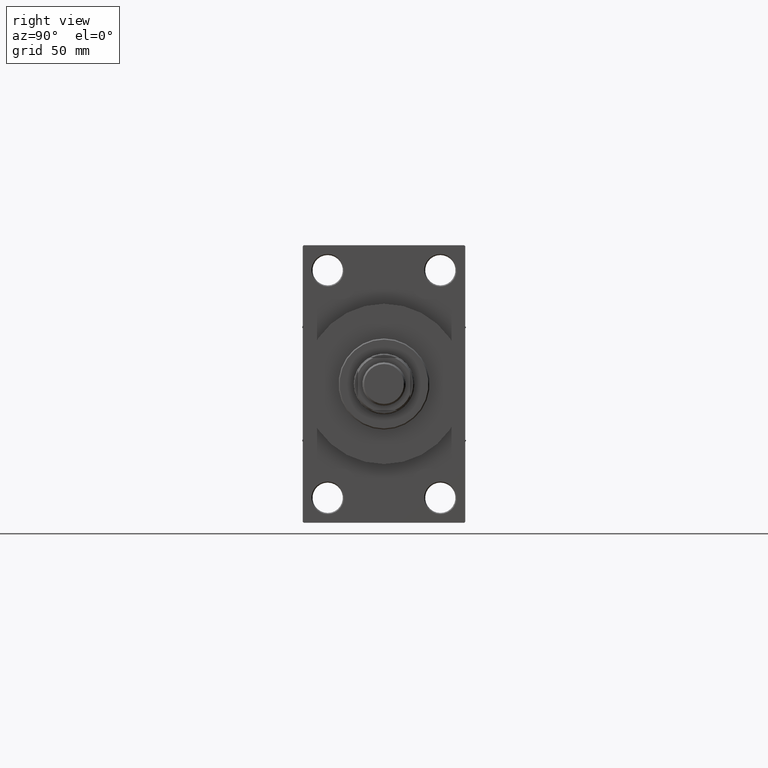
[diagram: clean part render]
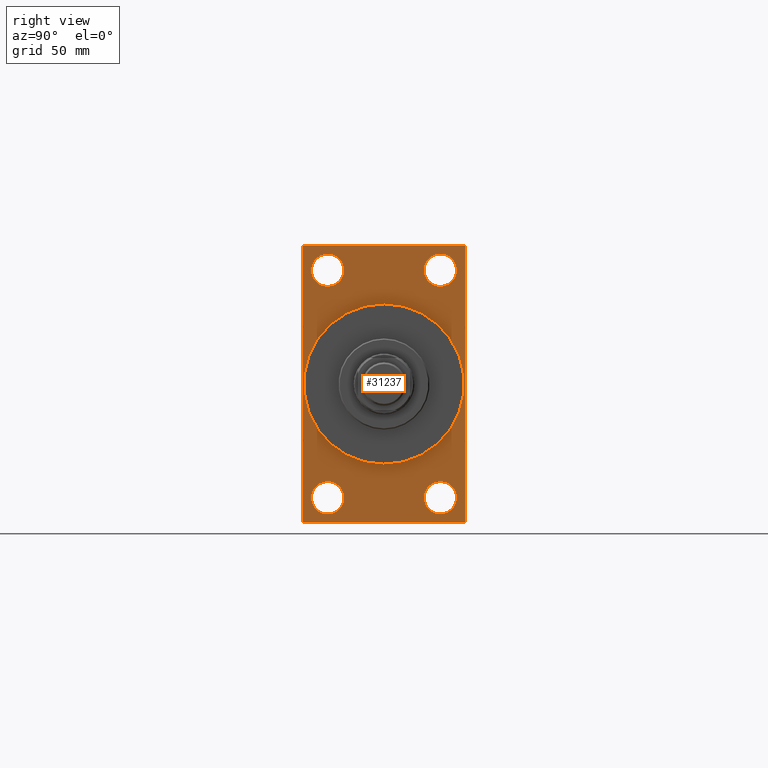
[diagram: same view with one face highlighted and labeled with its STEP entity id]
A machine part, right view. The second image highlights one B-rep face of the part: STEP entity #31237.
In plain terms, the highlighted planar face has unit normal (-1, 0, 0).
Its self-contained STEP definition (entity closure, byte-faithful):
#256 = ORIENTED_EDGE ( 'NONE', *, *, #36535, .T. ) ;
#471 = CARTESIAN_POINT ( 'NONE',  ( 218.0000000000000284, -25.99999999999999645, -52.49999999999999289 ) ) ;
#1481 = CARTESIAN_POINT ( 'NONE',  ( 218.0000000000000284, 26.00000000000000000, -52.49999999999999289 ) ) ;
#1488 = ORIENTED_EDGE ( 'NONE', *, *, #45208, .T. ) ;
#1940 = LINE ( 'NONE', #24817, #17558 ) ;
#2154 = FACE_OUTER_BOUND ( 'NONE', #16780, .T. ) ;
#2594 = VERTEX_POINT ( 'NONE', #45180 ) ;
#2659 = EDGE_CURVE ( 'NONE', #41295, #41350, #19469, .T. ) ;
#2825 = EDGE_CURVE ( 'NONE', #37734, #20423, #33293, .T. ) ;
#2866 = CARTESIAN_POINT ( 'NONE',  ( 218.0000000000000284, 0.000000000000000000, 0.000000000000000000 ) ) ;
#2878 = DIRECTION ( 'NONE',  ( 0.000000000000000000, -1.000000000000000000, -1.850371707708594563E-16 ) ) ;
#3392 = VECTOR ( 'NONE', #30174, 1000.000000000000000 ) ;
#3687 = VERTEX_POINT ( 'NONE', #47091 ) ;
#3838 = CIRCLE ( 'NONE', #5382, 7.499999999999978684 ) ;
#3879 = CIRCLE ( 'NONE', #19259, 37.00000000000000000 ) ;
#4008 = CARTESIAN_POINT ( 'NONE',  ( 218.0000000000000284, 0.000000000000000000, 0.000000000000000000 ) ) ;
#4144 = VECTOR ( 'NONE', #34955, 1000.000000000000000 ) ;
#4236 = DIRECTION ( 'NONE',  ( 0.000000000000000000, 0.000000000000000000, -1.000000000000000000 ) ) ;
#4312 = ORIENTED_EDGE ( 'NONE', *, *, #14507, .F. ) ;
#4677 = DIRECTION ( 'NONE',  ( 0.000000000000000000, 0.000000000000000000, 1.000000000000000000 ) ) ;
#4811 = LINE ( 'NONE', #33978, #28717 ) ;
#5248 = CARTESIAN_POINT ( 'NONE',  ( 218.0000000000000284, -36.99999999999992895, 63.99999999999997158 ) ) ;
#5350 = CIRCLE ( 'NONE', #10729, 7.499999999999978684 ) ;
#5382 = AXIS2_PLACEMENT_3D ( 'NONE', #11193, #7325, #25886 ) ;
#6006 = DIRECTION ( 'NONE',  ( -1.000000000000000000, 0.000000000000000000, -0.000000000000000000 ) ) ;
#6284 = EDGE_LOOP ( 'NONE', ( #29471, #36704 ) ) ;
#6340 = AXIS2_PLACEMENT_3D ( 'NONE', #33615, #22995, #4677 ) ;
#6705 = EDGE_CURVE ( 'NONE', #23368, #36883, #25184, .T. ) ;
#6750 = CARTESIAN_POINT ( 'NONE',  ( 218.0000000000000284, 37.49999999999999289, -63.49999999999995737 ) ) ;
#6900 = VECTOR ( 'NONE', #8471, 999.9999999999998863 ) ;
#7325 = DIRECTION ( 'NONE',  ( -1.000000000000000000, 0.000000000000000000, -0.000000000000000000 ) ) ;
#7368 = AXIS2_PLACEMENT_3D ( 'NONE', #28118, #17518, #46920 ) ;
#7684 = ORIENTED_EDGE ( 'NONE', *, *, #35530, .T. ) ;
#7846 = VERTEX_POINT ( 'NONE', #26092 ) ;
#8233 = CARTESIAN_POINT ( 'NONE',  ( 218.0000000000000284, 37.50000000000000000, 63.99999999999998579 ) ) ;
#8471 = DIRECTION ( 'NONE',  ( 0.000000000000000000, 0.7071067811865771047, -0.7071067811865180408 ) ) ;
#8595 = DIRECTION ( 'NONE',  ( 0.000000000000000000, 0.000000000000000000, 1.000000000000000000 ) ) ;
#9161 = EDGE_CURVE ( 'NONE', #24435, #23368, #31100, .T. ) ;
#9551 = VECTOR ( 'NONE', #33557, 1000.000000000000000 ) ;
#10109 = FACE_BOUND ( 'NONE', #23963, .T. ) ;
#10729 = AXIS2_PLACEMENT_3D ( 'NONE', #41632, #45235, #8595 ) ;
#11176 = AXIS2_PLACEMENT_3D ( 'NONE', #39650, #33126, #44694 ) ;
#11193 = CARTESIAN_POINT ( 'NONE',  ( 218.0000000000000284, -25.99999999999999645, -52.49999999999999289 ) ) ;
#11239 = CIRCLE ( 'NONE', #7368, 7.500000000000062172 ) ;
#12592 = DIRECTION ( 'NONE',  ( 0.000000000000000000, 0.000000000000000000, 1.000000000000000000 ) ) ;
#12697 = EDGE_CURVE ( 'NONE', #36883, #7846, #4811, .T. ) ;
#13376 = ORIENTED_EDGE ( 'NONE', *, *, #12697, .T. ) ;
#13981 = FACE_BOUND ( 'NONE', #28116, .T. ) ;
#14052 = CARTESIAN_POINT ( 'NONE',  ( 218.0000000000000284, -25.99999999999999645, -45.00000000000001421 ) ) ;
#14120 = CARTESIAN_POINT ( 'NONE',  ( 218.0000000000000284, -37.49999999999999289, 63.49999999999991473 ) ) ;
#14488 = EDGE_CURVE ( 'NONE', #25689, #24435, #45122, .T. ) ;
#14507 = EDGE_CURVE ( 'NONE', #25689, #2594, #37415, .T. ) ;
#14943 = VERTEX_POINT ( 'NONE', #16144 ) ;
#16123 = AXIS2_PLACEMENT_3D ( 'NONE', #2866, #6006, #24806 ) ;
#16144 = CARTESIAN_POINT ( 'NONE',  ( 218.0000000000000284, -36.99999999999996447, -64.00000000000001421 ) ) ;
#16700 = VERTEX_POINT ( 'NONE', #31937 ) ;
#16704 = EDGE_CURVE ( 'NONE', #46311, #47155, #17327, .T. ) ;
#16780 = EDGE_LOOP ( 'NONE', ( #13376, #7684, #25743, #256, #4312, #45736, #40115, #39097 ) ) ;
#17185 = CARTESIAN_POINT ( 'NONE',  ( 218.0000000000000284, 26.00000000000000000, -45.00000000000001421 ) ) ;
#17210 = CARTESIAN_POINT ( 'NONE',  ( 218.0000000000000284, 0.000000000000000000, 0.000000000000000000 ) ) ;
#17280 = ORIENTED_EDGE ( 'NONE', *, *, #19215, .F. ) ;
#17327 = CIRCLE ( 'NONE', #11176, 7.500000000000062172 ) ;
#17345 = FACE_BOUND ( 'NONE', #25345, .T. ) ;
#17518 = DIRECTION ( 'NONE',  ( -1.000000000000000000, 0.000000000000000000, -0.000000000000000000 ) ) ;
#17558 = VECTOR ( 'NONE', #2878, 1000.000000000000000 ) ;
#17835 = CARTESIAN_POINT ( 'NONE',  ( 218.0000000000000284, 0.000000000000000000, 37.00000000000000000 ) ) ;
#19023 = EDGE_CURVE ( 'NONE', #47155, #46311, #11239, .T. ) ;
#19127 = ORIENTED_EDGE ( 'NONE', *, *, #2659, .T. ) ;
#19215 = EDGE_CURVE ( 'NONE', #3687, #24270, #26628, .T. ) ;
#19259 = AXIS2_PLACEMENT_3D ( 'NONE', #17210, #43238, #24905 ) ;
#19349 = EDGE_CURVE ( 'NONE', #39616, #39428, #38977, .T. ) ;
#19469 = CIRCLE ( 'NONE', #6340, 7.499999999999978684 ) ;
#20423 = VERTEX_POINT ( 'NONE', #14052 ) ;
#20504 = AXIS2_PLACEMENT_3D ( 'NONE', #4008, #26396, #4236 ) ;
#21479 = AXIS2_PLACEMENT_3D ( 'NONE', #1481, #45606, #12592 ) ;
#22517 = AXIS2_PLACEMENT_3D ( 'NONE', #471, #41456, #34458 ) ;
#22995 = DIRECTION ( 'NONE',  ( -1.000000000000000000, 0.000000000000000000, -0.000000000000000000 ) ) ;
#23368 = VERTEX_POINT ( 'NONE', #5248 ) ;
#23963 = EDGE_LOOP ( 'NONE', ( #19127, #1488 ) ) ;
#24270 = VERTEX_POINT ( 'NONE', #17835 ) ;
#24435 = VERTEX_POINT ( 'NONE', #26470 ) ;
#24443 = ORIENTED_EDGE ( 'NONE', *, *, #46199, .T. ) ;
#24806 = DIRECTION ( 'NONE',  ( -0.000000000000000000, 0.000000000000000000, 1.000000000000000000 ) ) ;
#24817 = CARTESIAN_POINT ( 'NONE',  ( 218.0000000000000284, 37.49999999999999289, -64.00000000000000000 ) ) ;
#24842 = LINE ( 'NONE', #6750, #32346 ) ;
#24905 = DIRECTION ( 'NONE',  ( 0.000000000000000000, 0.000000000000000000, -1.000000000000000000 ) ) ;
#24947 = DIRECTION ( 'NONE',  ( -0.000000000000000000, -0.7071067811865524577, -0.7071067811865426878 ) ) ;
#25184 = LINE ( 'NONE', #14120, #27908 ) ;
#25345 = EDGE_LOOP ( 'NONE', ( #25971, #43505 ) ) ;
#25689 = VERTEX_POINT ( 'NONE', #36525 ) ;
#25743 = ORIENTED_EDGE ( 'NONE', *, *, #27478, .F. ) ;
#25886 = DIRECTION ( 'NONE',  ( 0.000000000000000000, 0.000000000000000000, 1.000000000000000000 ) ) ;
#25971 = ORIENTED_EDGE ( 'NONE', *, *, #19023, .T. ) ;
#26085 = CIRCLE ( 'NONE', #21479, 7.499999999999978684 ) ;
#26092 = CARTESIAN_POINT ( 'NONE',  ( 218.0000000000000284, -37.49999999999999289, -63.50000000000002842 ) ) ;
#26396 = DIRECTION ( 'NONE',  ( 1.000000000000000000, 0.000000000000000000, 0.000000000000000000 ) ) ;
#26470 = CARTESIAN_POINT ( 'NONE',  ( 218.0000000000000284, 36.99999999999997158, 63.99999999999998579 ) ) ;
#26628 = CIRCLE ( 'NONE', #20504, 37.00000000000000000 ) ;
#27292 = CARTESIAN_POINT ( 'NONE',  ( 218.0000000000000284, 26.00000000000000000, 59.99999999999997158 ) ) ;
#27355 = CARTESIAN_POINT ( 'NONE',  ( 218.0000000000000284, 26.00000000000000000, -52.49999999999999289 ) ) ;
#27478 = EDGE_CURVE ( 'NONE', #16700, #14943, #1940, .T. ) ;
#27908 = VECTOR ( 'NONE', #24947, 1000.000000000000000 ) ;
#28116 = EDGE_LOOP ( 'NONE', ( #40223, #17280 ) ) ;
#28118 = CARTESIAN_POINT ( 'NONE',  ( 218.0000000000000284, -25.99999999999999645, 52.50000000000000000 ) ) ;
#28717 = VECTOR ( 'NONE', #41219, 1000.000000000000000 ) ;
#29176 = DIRECTION ( 'NONE',  ( -0.000000000000000000, 0.7071067811865181518, 0.7071067811865769936 ) ) ;
#29471 = ORIENTED_EDGE ( 'NONE', *, *, #19349, .T. ) ;
#29654 = EDGE_CURVE ( 'NONE', #39428, #39616, #26085, .T. ) ;
#29934 = CARTESIAN_POINT ( 'NONE',  ( 218.0000000000000284, 36.99999999999997158, 63.99999999999998579 ) ) ;
#30170 = CARTESIAN_POINT ( 'NONE',  ( 218.0000000000000284, -36.99999999999996447, -64.00000000000001421 ) ) ;
#30174 = DIRECTION ( 'NONE',  ( 0.000000000000000000, -0.7071067811865672237, 0.7071067811865279218 ) ) ;
#31100 = LINE ( 'NONE', #31798, #4144 ) ;
#31237 = ADVANCED_FACE ( 'NONE', ( #17345, #39282, #43139, #10109, #13981, #2154 ), #39518, .F. ) ;
#31720 = EDGE_LOOP ( 'NONE', ( #34352, #24443 ) ) ;
#31798 = CARTESIAN_POINT ( 'NONE',  ( 218.0000000000000284, 37.50000000000000000, 63.99999999999998579 ) ) ;
#31937 = CARTESIAN_POINT ( 'NONE',  ( 218.0000000000000284, 36.99999999999999289, -64.00000000000000000 ) ) ;
#32235 = CARTESIAN_POINT ( 'NONE',  ( 218.0000000000000284, -25.99999999999999645, 60.00000000000005684 ) ) ;
#32346 = VECTOR ( 'NONE', #29176, 1000.000000000000000 ) ;
#33126 = DIRECTION ( 'NONE',  ( -1.000000000000000000, 0.000000000000000000, -0.000000000000000000 ) ) ;
#33293 = CIRCLE ( 'NONE', #22517, 7.499999999999978684 ) ;
#33557 = DIRECTION ( 'NONE',  ( 0.000000000000000000, -5.421010862427522170E-17, -1.000000000000000000 ) ) ;
#33575 = CARTESIAN_POINT ( 'NONE',  ( 218.0000000000000284, 26.00000000000000000, 45.00000000000001421 ) ) ;
#33615 = CARTESIAN_POINT ( 'NONE',  ( 218.0000000000000284, 26.00000000000000000, 52.49999999999999289 ) ) ;
#33978 = CARTESIAN_POINT ( 'NONE',  ( 218.0000000000000284, -37.49999999999999289, 63.99999999999997158 ) ) ;
#34352 = ORIENTED_EDGE ( 'NONE', *, *, #2825, .T. ) ;
#34458 = DIRECTION ( 'NONE',  ( 0.000000000000000000, 0.000000000000000000, 1.000000000000000000 ) ) ;
#34955 = DIRECTION ( 'NONE',  ( 0.000000000000000000, -1.000000000000000000, -1.850371707708594563E-16 ) ) ;
#35530 = EDGE_CURVE ( 'NONE', #7846, #14943, #37644, .T. ) ;
#36525 = CARTESIAN_POINT ( 'NONE',  ( 218.0000000000000284, 37.50000000000000000, 63.49999999999998579 ) ) ;
#36535 = EDGE_CURVE ( 'NONE', #16700, #2594, #24842, .T. ) ;
#36589 = CARTESIAN_POINT ( 'NONE',  ( 218.0000000000000284, -25.99999999999999645, 44.99999999999993605 ) ) ;
#36704 = ORIENTED_EDGE ( 'NONE', *, *, #29654, .T. ) ;
#36883 = VERTEX_POINT ( 'NONE', #43595 ) ;
#37415 = LINE ( 'NONE', #8233, #9551 ) ;
#37644 = LINE ( 'NONE', #30170, #6900 ) ;
#37734 = VERTEX_POINT ( 'NONE', #44090 ) ;
#37883 = CARTESIAN_POINT ( 'NONE',  ( 218.0000000000000284, 26.00000000000000000, -59.99999999999997158 ) ) ;
#37987 = DIRECTION ( 'NONE',  ( 0.000000000000000000, 0.000000000000000000, 1.000000000000000000 ) ) ;
#38977 = CIRCLE ( 'NONE', #45889, 7.499999999999978684 ) ;
#39097 = ORIENTED_EDGE ( 'NONE', *, *, #6705, .T. ) ;
#39282 = FACE_BOUND ( 'NONE', #31720, .T. ) ;
#39428 = VERTEX_POINT ( 'NONE', #17185 ) ;
#39518 = PLANE ( 'NONE',  #16123 ) ;
#39616 = VERTEX_POINT ( 'NONE', #37883 ) ;
#39650 = CARTESIAN_POINT ( 'NONE',  ( 218.0000000000000284, -25.99999999999999645, 52.50000000000000000 ) ) ;
#40115 = ORIENTED_EDGE ( 'NONE', *, *, #9161, .T. ) ;
#40223 = ORIENTED_EDGE ( 'NONE', *, *, #47644, .F. ) ;
#41219 = DIRECTION ( 'NONE',  ( 0.000000000000000000, 0.000000000000000000, -1.000000000000000000 ) ) ;
#41295 = VERTEX_POINT ( 'NONE', #33575 ) ;
#41350 = VERTEX_POINT ( 'NONE', #27292 ) ;
#41357 = DIRECTION ( 'NONE',  ( -1.000000000000000000, 0.000000000000000000, -0.000000000000000000 ) ) ;
#41456 = DIRECTION ( 'NONE',  ( -1.000000000000000000, 0.000000000000000000, -0.000000000000000000 ) ) ;
#41632 = CARTESIAN_POINT ( 'NONE',  ( 218.0000000000000284, 26.00000000000000000, 52.49999999999999289 ) ) ;
#43139 = FACE_BOUND ( 'NONE', #6284, .T. ) ;
#43238 = DIRECTION ( 'NONE',  ( 1.000000000000000000, 0.000000000000000000, 0.000000000000000000 ) ) ;
#43505 = ORIENTED_EDGE ( 'NONE', *, *, #16704, .T. ) ;
#43595 = CARTESIAN_POINT ( 'NONE',  ( 218.0000000000000284, -37.49999999999999289, 63.49999999999991473 ) ) ;
#44090 = CARTESIAN_POINT ( 'NONE',  ( 218.0000000000000284, -25.99999999999999645, -59.99999999999997158 ) ) ;
#44694 = DIRECTION ( 'NONE',  ( 0.000000000000000000, 0.000000000000000000, 1.000000000000000000 ) ) ;
#45122 = LINE ( 'NONE', #29934, #3392 ) ;
#45180 = CARTESIAN_POINT ( 'NONE',  ( 218.0000000000000284, 37.49999999999999289, -63.49999999999995737 ) ) ;
#45208 = EDGE_CURVE ( 'NONE', #41350, #41295, #5350, .T. ) ;
#45235 = DIRECTION ( 'NONE',  ( -1.000000000000000000, 0.000000000000000000, -0.000000000000000000 ) ) ;
#45606 = DIRECTION ( 'NONE',  ( -1.000000000000000000, 0.000000000000000000, -0.000000000000000000 ) ) ;
#45736 = ORIENTED_EDGE ( 'NONE', *, *, #14488, .T. ) ;
#45889 = AXIS2_PLACEMENT_3D ( 'NONE', #27355, #41357, #37987 ) ;
#46199 = EDGE_CURVE ( 'NONE', #20423, #37734, #3838, .T. ) ;
#46311 = VERTEX_POINT ( 'NONE', #32235 ) ;
#46920 = DIRECTION ( 'NONE',  ( 0.000000000000000000, 0.000000000000000000, 1.000000000000000000 ) ) ;
#47091 = CARTESIAN_POINT ( 'NONE',  ( 218.0000000000000284, 4.531193156845206793E-15, -37.00000000000000000 ) ) ;
#47155 = VERTEX_POINT ( 'NONE', #36589 ) ;
#47644 = EDGE_CURVE ( 'NONE', #24270, #3687, #3879, .T. ) ;